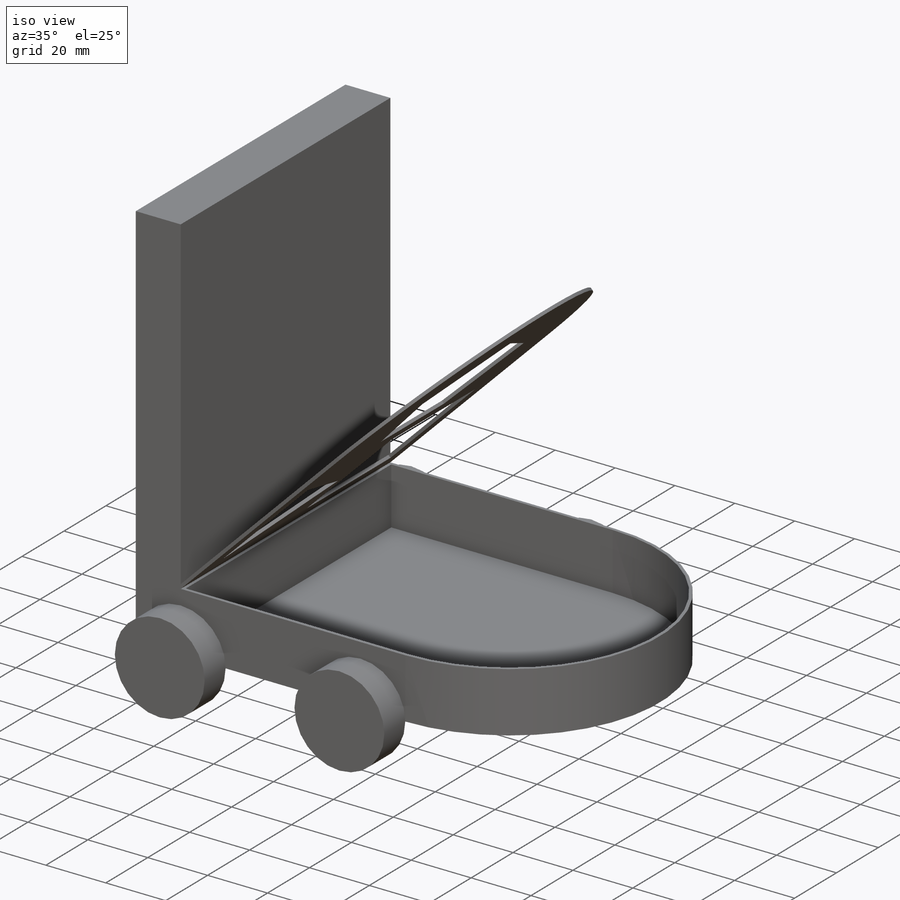
[diagram: iso view]
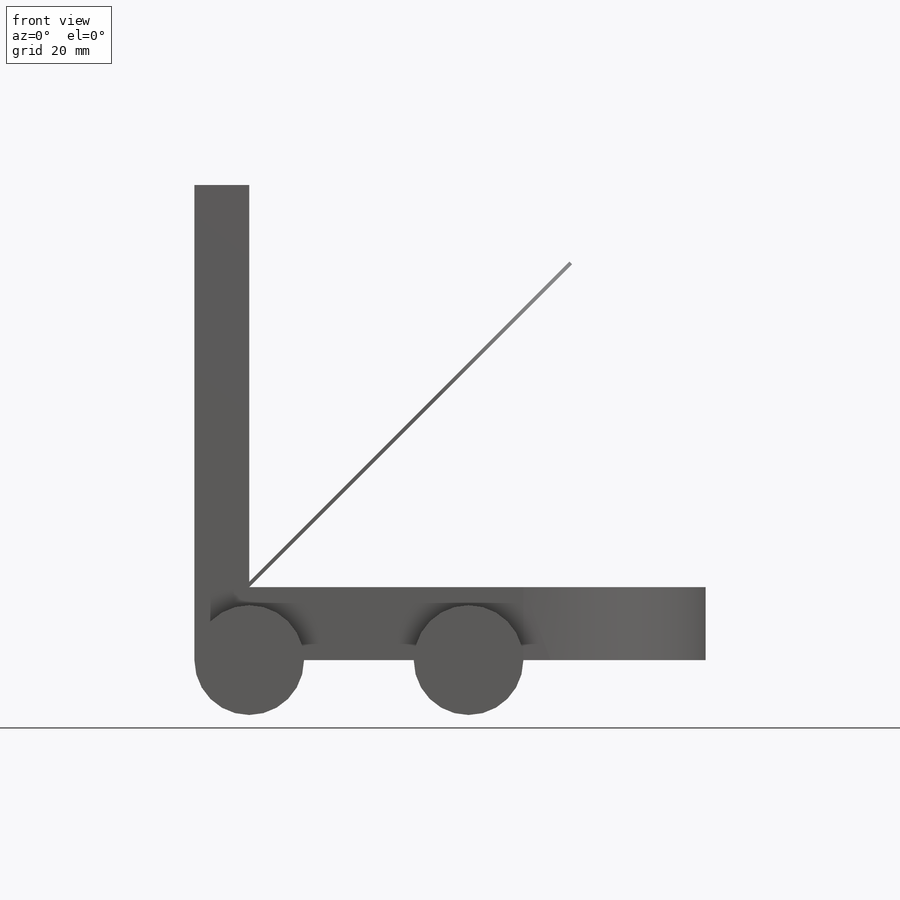
[diagram: front view]
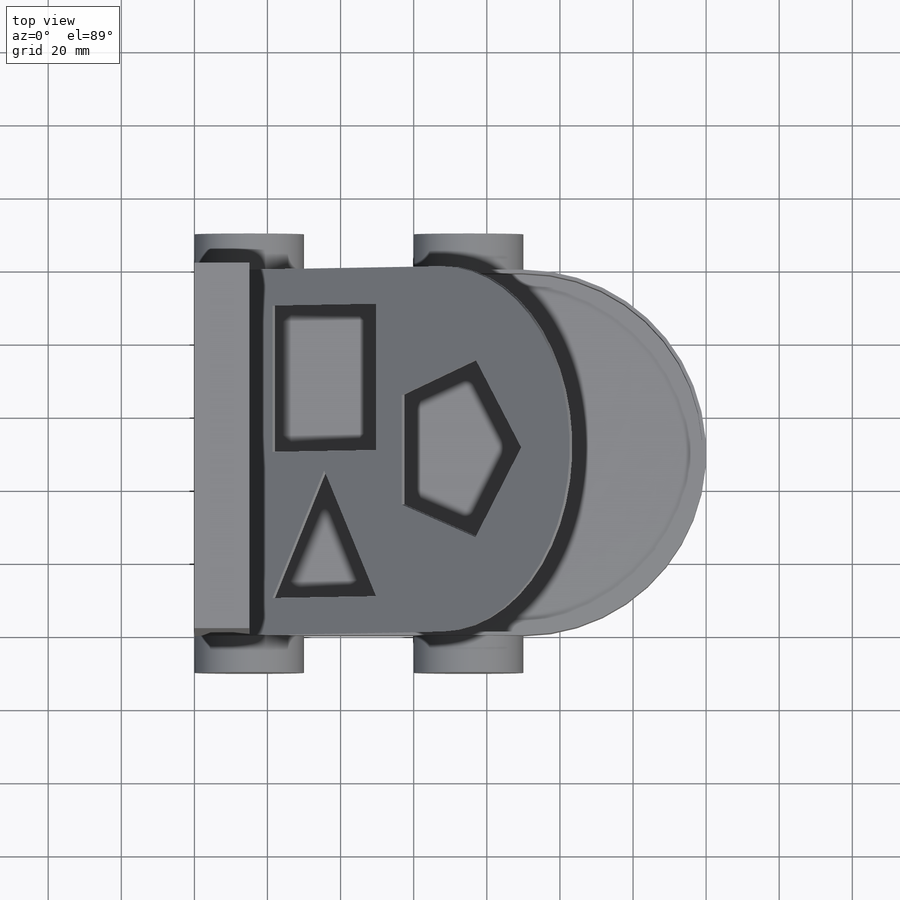
[diagram: top view]
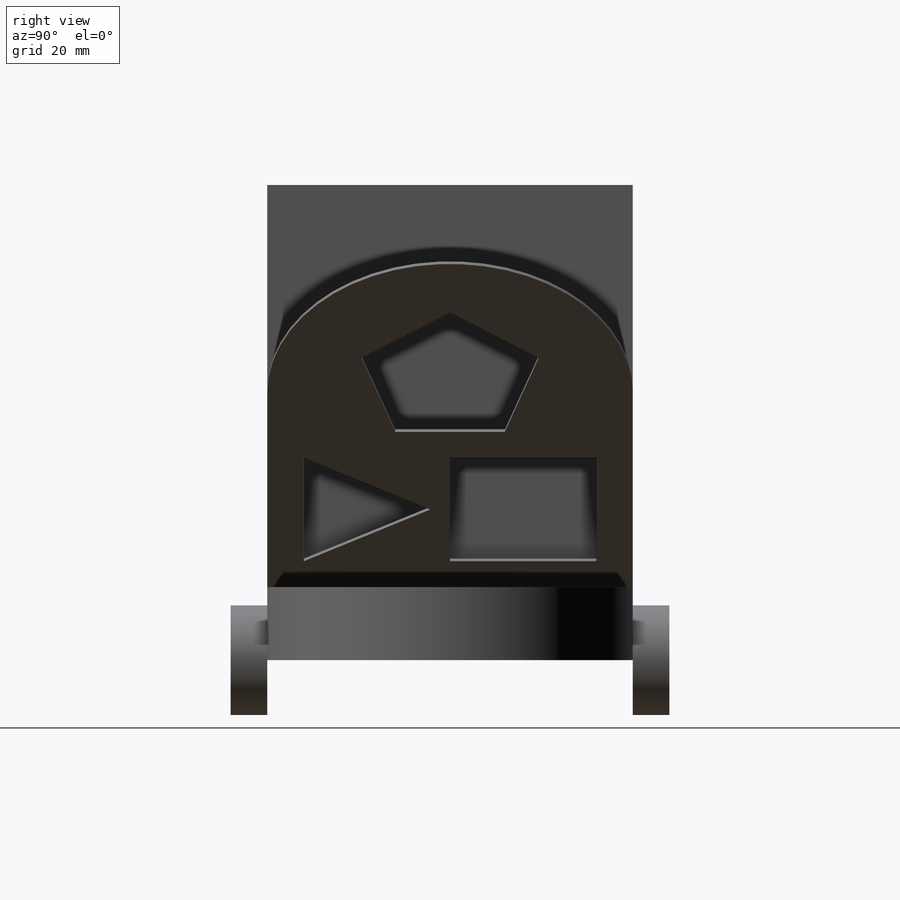
[diagram: right view]
SOLIDWORKS PART (.sldprt)
format: sldprt  version: not decoded by parser v0  size: 237,056 bytes
history: native  units: mm
features: sketch x4, extrude x4, plane x2, material x1, shell x1, pattern_linear x1 (+12 scaffold rows collapsed)
feature tree (25):
  scaffold x12  (default folders/planes/origin — collapsed)
  material  "Material <not specified>"
  plane  "15mm Plane"  Offset=15mm
  sketch  "Sketch1"  dims[D1=100.0mm D2=75.0mm D3=15.0mm]
  extrude  "Horizontal body"  Depth=20mm
  shell  "Shell of base"  Thickness=1mm
  sketch  "Sketch3"  dims[D1=15.0mm]
  extrude  "Vertical body"  Depth=130mm
  sketch  "Sketch4"  dims[D1=30.0mm D2=15.0mm]
  extrude  "Wheel"  Depth=10mm
  pattern_linear  "Wheel pattern"  Count1=2 Count2=2 Spacing1=60mm Spacing2=110mm
  plane  "Lid plane"
  sketch  "Sketch6"  dims[c1.D8=50.0mm c1.D1=40.0mm c1.D2=10.0mm c1.D3=50.0mm c1.D4=10.0mm c1.D5=30.0mm c1.D6=10.0mm c1.D7=50.0mm c2.D3=10.0mm c2.D4=50.0mm c2.D7=50.0mm c2.D8=75.0mm]
  extrude  "Lid"  Depth=1mm
decode coverage: 10 of 10 modeling features carry decoded parameters
note: suppression state not decoded; provenance and decode notes live in map.json
